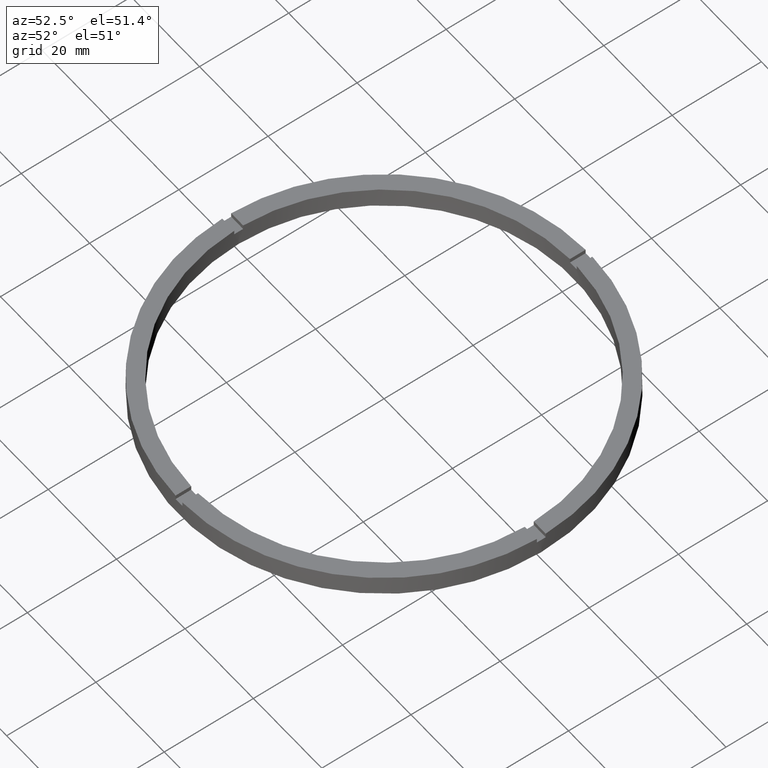
[diagram: clean part render]
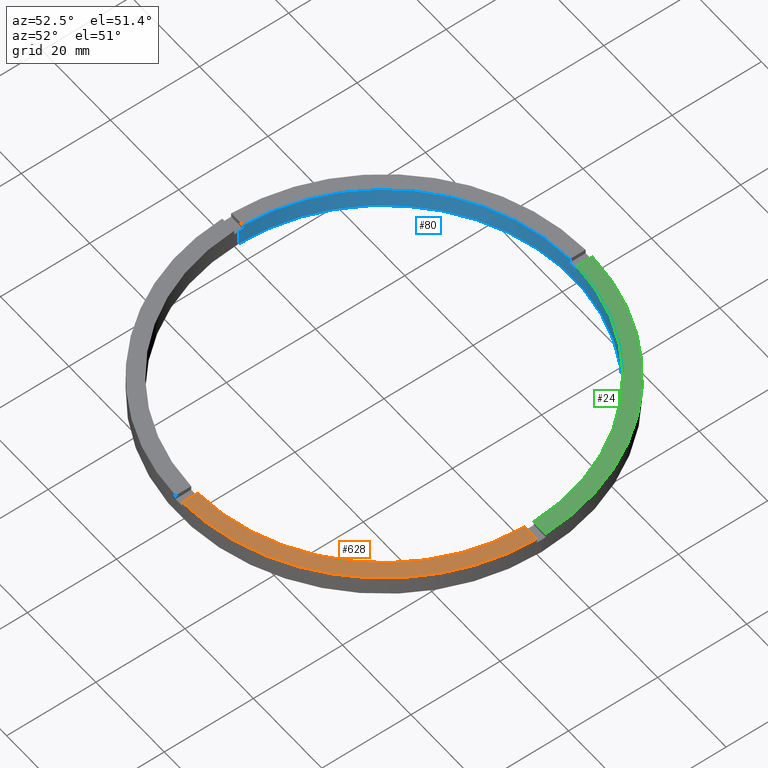
[diagram: same view with three faces highlighted in distinct colors, each labeled with its STEP entity id]
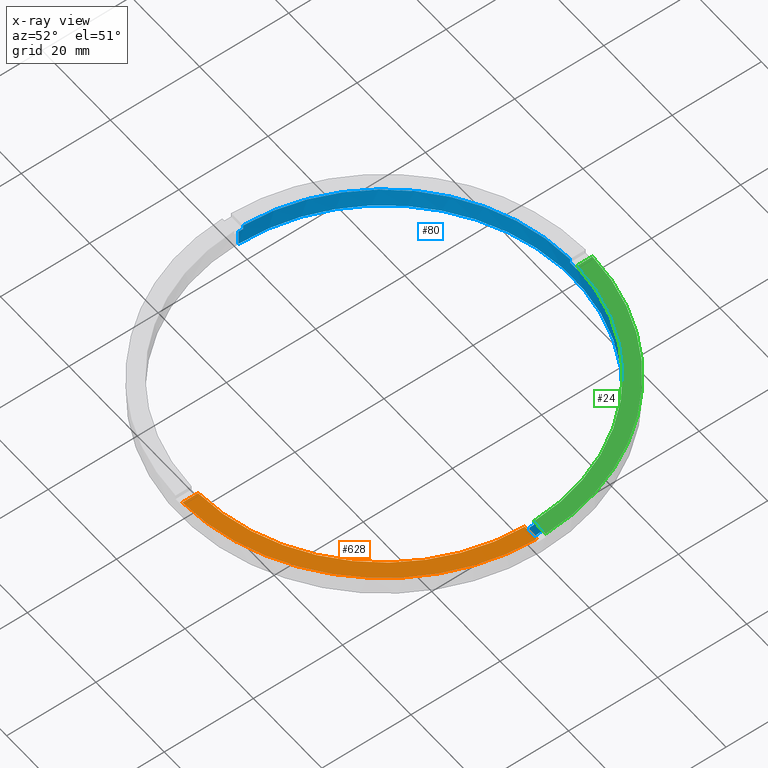
[diagram: x-ray of the same camera — body ghosted, the three highlighted faces saturated]
A machine part, auxiliary view with three faces highlighted in distinct colors.
The next image is the same camera in x-ray (body ghosted, the three faces saturated) — at least one of them is partly hidden behind the body in this view.
Their STEP definitions:

[orange] entity #628 — the highlighted planar face has unit normal (0, 0, 1).
#23 = VERTEX_POINT ( 'NONE', #656 ) ;
#30 = DIRECTION ( 'NONE',  ( 1.000000000000000000, 0.000000000000000000, 0.000000000000000000 ) ) ;
#72 = CARTESIAN_POINT ( 'NONE',  ( 45.98912915026767223, -1.000000000000155875, 4.500000000000000000 ) ) ;
#110 = CARTESIAN_POINT ( 'NONE',  ( 35.99999999999999289, -1.000000000000156541, 4.500000000000000000 ) ) ;
#121 = CARTESIAN_POINT ( 'NONE',  ( 42.48823366533375179, -1.000000000000156097, 4.500000000000000000 ) ) ;
#153 = DIRECTION ( 'NONE',  ( 1.000000000000000000, 6.505213034913025371E-17, 0.000000000000000000 ) ) ;
#159 = ORIENTED_EDGE ( 'NONE', *, *, #304, .F. ) ;
#160 = EDGE_CURVE ( 'NONE', #23, #474, #340, .T. ) ;
#161 = VERTEX_POINT ( 'NONE', #121 ) ;
#240 = VERTEX_POINT ( 'NONE', #72 ) ;
#245 = EDGE_CURVE ( 'NONE', #23, #240, #591, .T. ) ;
#260 = CARTESIAN_POINT ( 'NONE',  ( 0.000000000000000000, 0.000000000000000000, 4.500000000000000000 ) ) ;
#297 = PLANE ( 'NONE',  #622 ) ;
#304 = EDGE_CURVE ( 'NONE', #474, #161, #611, .T. ) ;
#314 = CARTESIAN_POINT ( 'NONE',  ( 0.000000000000000000, 0.000000000000000000, 4.500000000000000000 ) ) ;
#324 = CARTESIAN_POINT ( 'NONE',  ( 0.9999999999998409050, -36.00000000000017764, 4.500000000000000000 ) ) ;
#340 = LINE ( 'NONE', #324, #610 ) ;
#362 = LINE ( 'NONE', #110, #589 ) ;
#364 = CARTESIAN_POINT ( 'NONE',  ( 0.000000000000000000, 0.000000000000000000, 4.500000000000000000 ) ) ;
#392 = CARTESIAN_POINT ( 'NONE',  ( 0.9999999999998414602, -42.48823366533375889, 4.500000000000000000 ) ) ;
#407 = EDGE_CURVE ( 'NONE', #161, #240, #362, .T. ) ;
#418 = ORIENTED_EDGE ( 'NONE', *, *, #245, .T. ) ;
#469 = DIRECTION ( 'NONE',  ( 0.000000000000000000, 0.000000000000000000, 1.000000000000000000 ) ) ;
#471 = EDGE_LOOP ( 'NONE', ( #508, #159, #497, #418 ) ) ;
#474 = VERTEX_POINT ( 'NONE', #392 ) ;
#497 = ORIENTED_EDGE ( 'NONE', *, *, #160, .F. ) ;
#508 = ORIENTED_EDGE ( 'NONE', *, *, #407, .F. ) ;
#544 = FACE_OUTER_BOUND ( 'NONE', #471, .T. ) ;
#589 = VECTOR ( 'NONE', #153, 1000.000000000000000 ) ;
#591 = CIRCLE ( 'NONE', #645, 46.00000000000000000 ) ;
#602 = DIRECTION ( 'NONE',  ( 1.000000000000000000, 0.000000000000000000, -0.000000000000000000 ) ) ;
#609 = DIRECTION ( 'NONE',  ( 1.000000000000000000, 0.000000000000000000, 0.000000000000000000 ) ) ;
#610 = VECTOR ( 'NONE', #681, 1000.000000000000000 ) ;
#611 = CIRCLE ( 'NONE', #778, 42.50000000000000711 ) ;
#622 = AXIS2_PLACEMENT_3D ( 'NONE', #364, #469, #602 ) ;
#628 = ADVANCED_FACE ( 'NONE', ( #544 ), #297, .T. ) ;
#645 = AXIS2_PLACEMENT_3D ( 'NONE', #314, #716, #609 ) ;
#656 = CARTESIAN_POINT ( 'NONE',  ( 0.9999999999998421263, -45.98912915026767934, 4.500000000000000000 ) ) ;
#681 = DIRECTION ( 'NONE',  ( -1.301042606982605074E-16, 1.000000000000000000, -0.000000000000000000 ) ) ;
#714 = DIRECTION ( 'NONE',  ( 0.000000000000000000, 0.000000000000000000, 1.000000000000000000 ) ) ;
#716 = DIRECTION ( 'NONE',  ( 0.000000000000000000, 0.000000000000000000, 1.000000000000000000 ) ) ;
#778 = AXIS2_PLACEMENT_3D ( 'NONE', #260, #714, #30 ) ;

[blue] entity #80 — the highlighted cylindrical surface (partial cylindrical patch) has radius 42.5 mm, axis along (-0, -0, -1).
#2 = CARTESIAN_POINT ( 'NONE',  ( 0.000000000000000000, 0.000000000000000000, 3.499999999999999556 ) ) ;
#5 = VECTOR ( 'NONE', #535, 1000.000000000000000 ) ;
#8 = DIRECTION ( 'NONE',  ( 1.000000000000000000, 0.000000000000000000, 0.000000000000000000 ) ) ;
#19 = EDGE_CURVE ( 'NONE', #487, #727, #180, .T. ) ;
#34 = CARTESIAN_POINT ( 'NONE',  ( 42.48823366533375889, 0.9999999999998439026, 3.499999999999999556 ) ) ;
#43 = DIRECTION ( 'NONE',  ( -0.000000000000000000, -0.000000000000000000, -1.000000000000000000 ) ) ;
#55 = DIRECTION ( 'NONE',  ( 0.000000000000000000, 0.000000000000000000, 1.000000000000000000 ) ) ;
#65 = EDGE_CURVE ( 'NONE', #150, #162, #441, .T. ) ;
#68 = VECTOR ( 'NONE', #43, 1000.000000000000000 ) ;
#76 = AXIS2_PLACEMENT_3D ( 'NONE', #682, #55, #403 ) ;
#80 = ADVANCED_FACE ( 'NONE', ( #176 ), #690, .F. ) ;
#82 = CIRCLE ( 'NONE', #76, 42.50000000000000711 ) ;
#87 = EDGE_CURVE ( 'NONE', #150, #760, #684, .T. ) ;
#90 = VECTOR ( 'NONE', #644, 1000.000000000000000 ) ;
#101 = CARTESIAN_POINT ( 'NONE',  ( 0.9999999999999737987, 42.48823366533375889, 3.499999999999999556 ) ) ;
#108 = CARTESIAN_POINT ( 'NONE',  ( 0.9999999999999737987, 42.48823366533375889, 4.500000000000000000 ) ) ;
#111 = AXIS2_PLACEMENT_3D ( 'NONE', #406, #696, #549 ) ;
#113 = CARTESIAN_POINT ( 'NONE',  ( -42.48823366533375889, 0.9999999999999705791, 4.500000000000000000 ) ) ;
#117 = CARTESIAN_POINT ( 'NONE',  ( -42.48823366533375889, 0.9999999999999705791, 3.499999999999999556 ) ) ;
#124 = DIRECTION ( 'NONE',  ( -0.000000000000000000, -0.000000000000000000, -1.000000000000000000 ) ) ;
#125 = DIRECTION ( 'NONE',  ( 0.000000000000000000, 0.000000000000000000, 1.000000000000000000 ) ) ;
#128 = EDGE_CURVE ( 'NONE', #465, #162, #455, .T. ) ;
#131 = VERTEX_POINT ( 'NONE', #376 ) ;
#134 = ORIENTED_EDGE ( 'NONE', *, *, #65, .F. ) ;
#150 = VERTEX_POINT ( 'NONE', #101 ) ;
#155 = VERTEX_POINT ( 'NONE', #548 ) ;
#162 = VERTEX_POINT ( 'NONE', #108 ) ;
#165 = DIRECTION ( 'NONE',  ( 0.000000000000000000, -0.000000000000000000, 1.000000000000000000 ) ) ;
#167 = EDGE_CURVE ( 'NONE', #492, #131, #614, .T. ) ;
#168 = AXIS2_PLACEMENT_3D ( 'NONE', #259, #566, #366 ) ;
#176 = FACE_OUTER_BOUND ( 'NONE', #431, .T. ) ;
#180 = CIRCLE ( 'NONE', #506, 42.50000000000000711 ) ;
#185 = CARTESIAN_POINT ( 'NONE',  ( 0.000000000000000000, 0.000000000000000000, 4.500000000000000000 ) ) ;
#190 = ORIENTED_EDGE ( 'NONE', *, *, #395, .F. ) ;
#196 = CARTESIAN_POINT ( 'NONE',  ( 0.000000000000000000, 0.000000000000000000, 4.500000000000000000 ) ) ;
#197 = VERTEX_POINT ( 'NONE', #34 ) ;
#204 = ORIENTED_EDGE ( 'NONE', *, *, #167, .F. ) ;
#207 = VERTEX_POINT ( 'NONE', #117 ) ;
#211 = AXIS2_PLACEMENT_3D ( 'NONE', #2, #165, #515 ) ;
#220 = ORIENTED_EDGE ( 'NONE', *, *, #87, .T. ) ;
#230 = ORIENTED_EDGE ( 'NONE', *, *, #459, .T. ) ;
#248 = DIRECTION ( 'NONE',  ( 0.000000000000000000, 0.000000000000000000, 1.000000000000000000 ) ) ;
#259 = CARTESIAN_POINT ( 'NONE',  ( 0.000000000000000000, 0.000000000000000000, 4.500000000000000000 ) ) ;
#294 = CARTESIAN_POINT ( 'NONE',  ( -42.50000000000000711, 0.000000000000000000, 0.000000000000000000 ) ) ;
#300 = AXIS2_PLACEMENT_3D ( 'NONE', #530, #248, #491 ) ;
#326 = LINE ( 'NONE', #396, #90 ) ;
#333 = VECTOR ( 'NONE', #632, 1000.000000000000000 ) ;
#348 = CARTESIAN_POINT ( 'NONE',  ( 42.48823366533375889, 0.9999999999998439026, 4.500000000000000000 ) ) ;
#360 = CIRCLE ( 'NONE', #111, 42.50000000000000711 ) ;
#361 = CARTESIAN_POINT ( 'NONE',  ( 42.48823366533375889, 0.9999999999998439026, 4.500000000000000000 ) ) ;
#366 = DIRECTION ( 'NONE',  ( -1.000000000000000000, 0.000000000000000000, 0.000000000000000000 ) ) ;
#376 = CARTESIAN_POINT ( 'NONE',  ( 42.50000000000000711, 5.204748896376252474E-15, 0.000000000000000000 ) ) ;
#388 = CARTESIAN_POINT ( 'NONE',  ( -1.000000000000026201, 42.48823366533375179, 3.499999999999999556 ) ) ;
#391 = AXIS2_PLACEMENT_3D ( 'NONE', #196, #738, #629 ) ;
#395 = EDGE_CURVE ( 'NONE', #207, #727, #326, .T. ) ;
#396 = CARTESIAN_POINT ( 'NONE',  ( -42.48823366533375889, 0.9999999999999705791, 4.500000000000000000 ) ) ;
#403 = DIRECTION ( 'NONE',  ( 1.000000000000000000, 0.000000000000000000, 0.000000000000000000 ) ) ;
#406 = CARTESIAN_POINT ( 'NONE',  ( 0.000000000000000000, 0.000000000000000000, 0.000000000000000000 ) ) ;
#431 = EDGE_LOOP ( 'NONE', ( #204, #711, #463, #707, #134, #220, #556, #514, #190, #662, #230, #670 ) ) ;
#440 = CARTESIAN_POINT ( 'NONE',  ( 42.50000000000000711, 5.204748896376252474E-15, 4.500000000000000000 ) ) ;
#441 = LINE ( 'NONE', #663, #689 ) ;
#442 = EDGE_CURVE ( 'NONE', #131, #504, #360, .T. ) ;
#455 = CIRCLE ( 'NONE', #391, 42.50000000000000711 ) ;
#459 = EDGE_CURVE ( 'NONE', #155, #504, #598, .T. ) ;
#460 = CARTESIAN_POINT ( 'NONE',  ( -42.50000000000000711, 0.000000000000000000, 4.500000000000000000 ) ) ;
#463 = ORIENTED_EDGE ( 'NONE', *, *, #493, .F. ) ;
#465 = VERTEX_POINT ( 'NONE', #348 ) ;
#487 = VERTEX_POINT ( 'NONE', #603 ) ;
#491 = DIRECTION ( 'NONE',  ( 1.000000000000000000, 0.000000000000000000, 0.000000000000000000 ) ) ;
#492 = VERTEX_POINT ( 'NONE', #587 ) ;
#493 = EDGE_CURVE ( 'NONE', #465, #197, #600, .T. ) ;
#504 = VERTEX_POINT ( 'NONE', #294 ) ;
#506 = AXIS2_PLACEMENT_3D ( 'NONE', #185, #125, #8 ) ;
#514 = ORIENTED_EDGE ( 'NONE', *, *, #19, .T. ) ;
#515 = DIRECTION ( 'NONE',  ( 1.000000000000000000, 0.000000000000000000, 0.000000000000000000 ) ) ;
#530 = CARTESIAN_POINT ( 'NONE',  ( 0.000000000000000000, 0.000000000000000000, 3.499999999999999556 ) ) ;
#531 = CIRCLE ( 'NONE', #300, 42.50000000000000711 ) ;
#535 = DIRECTION ( 'NONE',  ( -0.000000000000000000, -0.000000000000000000, -1.000000000000000000 ) ) ;
#542 = EDGE_CURVE ( 'NONE', #207, #155, #82, .T. ) ;
#548 = CARTESIAN_POINT ( 'NONE',  ( -42.50000000000000711, 0.000000000000000000, 3.499999999999999556 ) ) ;
#549 = DIRECTION ( 'NONE',  ( 1.000000000000000000, 0.000000000000000000, 0.000000000000000000 ) ) ;
#556 = ORIENTED_EDGE ( 'NONE', *, *, #700, .F. ) ;
#566 = DIRECTION ( 'NONE',  ( -0.000000000000000000, -0.000000000000000000, -1.000000000000000000 ) ) ;
#578 = CARTESIAN_POINT ( 'NONE',  ( -1.000000000000026201, 42.48823366533375179, 4.500000000000000000 ) ) ;
#587 = CARTESIAN_POINT ( 'NONE',  ( 42.50000000000000711, 5.204748896376252474E-15, 3.499999999999999556 ) ) ;
#588 = VECTOR ( 'NONE', #124, 1000.000000000000000 ) ;
#598 = LINE ( 'NONE', #460, #68 ) ;
#600 = LINE ( 'NONE', #361, #588 ) ;
#603 = CARTESIAN_POINT ( 'NONE',  ( -1.000000000000026201, 42.48823366533375179, 4.500000000000000000 ) ) ;
#614 = LINE ( 'NONE', #440, #333 ) ;
#629 = DIRECTION ( 'NONE',  ( 1.000000000000000000, 0.000000000000000000, 0.000000000000000000 ) ) ;
#632 = DIRECTION ( 'NONE',  ( -0.000000000000000000, -0.000000000000000000, -1.000000000000000000 ) ) ;
#644 = DIRECTION ( 'NONE',  ( 0.000000000000000000, 0.000000000000000000, 1.000000000000000000 ) ) ;
#650 = EDGE_CURVE ( 'NONE', #492, #197, #531, .T. ) ;
#662 = ORIENTED_EDGE ( 'NONE', *, *, #542, .T. ) ;
#663 = CARTESIAN_POINT ( 'NONE',  ( 0.9999999999999737987, 42.48823366533375889, 4.500000000000000000 ) ) ;
#670 = ORIENTED_EDGE ( 'NONE', *, *, #442, .F. ) ;
#682 = CARTESIAN_POINT ( 'NONE',  ( 0.000000000000000000, 0.000000000000000000, 3.499999999999999556 ) ) ;
#684 = CIRCLE ( 'NONE', #211, 42.50000000000000711 ) ;
#689 = VECTOR ( 'NONE', #720, 1000.000000000000000 ) ;
#690 = CYLINDRICAL_SURFACE ( 'NONE', #168, 42.50000000000000711 ) ;
#696 = DIRECTION ( 'NONE',  ( 0.000000000000000000, 0.000000000000000000, 1.000000000000000000 ) ) ;
#700 = EDGE_CURVE ( 'NONE', #487, #760, #758, .T. ) ;
#707 = ORIENTED_EDGE ( 'NONE', *, *, #128, .T. ) ;
#711 = ORIENTED_EDGE ( 'NONE', *, *, #650, .T. ) ;
#720 = DIRECTION ( 'NONE',  ( 0.000000000000000000, 0.000000000000000000, 1.000000000000000000 ) ) ;
#727 = VERTEX_POINT ( 'NONE', #113 ) ;
#738 = DIRECTION ( 'NONE',  ( 0.000000000000000000, 0.000000000000000000, 1.000000000000000000 ) ) ;
#758 = LINE ( 'NONE', #578, #5 ) ;
#760 = VERTEX_POINT ( 'NONE', #388 ) ;

[green] entity #24 — the highlighted planar face has unit normal (0, 0, 1).
#11 = VERTEX_POINT ( 'NONE', #138 ) ;
#12 = DIRECTION ( 'NONE',  ( 0.000000000000000000, 0.000000000000000000, 1.000000000000000000 ) ) ;
#14 = EDGE_LOOP ( 'NONE', ( #731, #448, #456, #385 ) ) ;
#16 = AXIS2_PLACEMENT_3D ( 'NONE', #728, #144, #89 ) ;
#18 = CARTESIAN_POINT ( 'NONE',  ( 0.9999999999999737987, 36.00000000000000000, 4.500000000000000000 ) ) ;
#24 = ADVANCED_FACE ( 'NONE', ( #680 ), #726, .T. ) ;
#73 = EDGE_CURVE ( 'NONE', #162, #11, #445, .T. ) ;
#83 = DIRECTION ( 'NONE',  ( 0.000000000000000000, 1.000000000000000000, 0.000000000000000000 ) ) ;
#89 = DIRECTION ( 'NONE',  ( 1.000000000000000000, 0.000000000000000000, 0.000000000000000000 ) ) ;
#95 = LINE ( 'NONE', #105, #349 ) ;
#105 = CARTESIAN_POINT ( 'NONE',  ( 35.99999999999999289, 0.9999999999998434586, 4.500000000000000000 ) ) ;
#108 = CARTESIAN_POINT ( 'NONE',  ( 0.9999999999999737987, 42.48823366533375889, 4.500000000000000000 ) ) ;
#128 = EDGE_CURVE ( 'NONE', #465, #162, #455, .T. ) ;
#138 = CARTESIAN_POINT ( 'NONE',  ( 0.9999999999999737987, 45.98912915026767223, 4.500000000000000000 ) ) ;
#144 = DIRECTION ( 'NONE',  ( 0.000000000000000000, 0.000000000000000000, 1.000000000000000000 ) ) ;
#162 = VERTEX_POINT ( 'NONE', #108 ) ;
#172 = VECTOR ( 'NONE', #83, 1000.000000000000000 ) ;
#196 = CARTESIAN_POINT ( 'NONE',  ( 0.000000000000000000, 0.000000000000000000, 4.500000000000000000 ) ) ;
#280 = EDGE_CURVE ( 'NONE', #488, #11, #616, .T. ) ;
#348 = CARTESIAN_POINT ( 'NONE',  ( 42.48823366533375889, 0.9999999999998439026, 4.500000000000000000 ) ) ;
#349 = VECTOR ( 'NONE', #658, 1000.000000000000000 ) ;
#368 = EDGE_CURVE ( 'NONE', #488, #465, #95, .T. ) ;
#385 = ORIENTED_EDGE ( 'NONE', *, *, #280, .T. ) ;
#391 = AXIS2_PLACEMENT_3D ( 'NONE', #196, #738, #629 ) ;
#445 = LINE ( 'NONE', #18, #172 ) ;
#448 = ORIENTED_EDGE ( 'NONE', *, *, #128, .F. ) ;
#455 = CIRCLE ( 'NONE', #391, 42.50000000000000711 ) ;
#456 = ORIENTED_EDGE ( 'NONE', *, *, #368, .F. ) ;
#465 = VERTEX_POINT ( 'NONE', #348 ) ;
#488 = VERTEX_POINT ( 'NONE', #781 ) ;
#501 = DIRECTION ( 'NONE',  ( 1.000000000000000000, 0.000000000000000000, -0.000000000000000000 ) ) ;
#615 = AXIS2_PLACEMENT_3D ( 'NONE', #712, #12, #501 ) ;
#616 = CIRCLE ( 'NONE', #16, 46.00000000000000000 ) ;
#629 = DIRECTION ( 'NONE',  ( 1.000000000000000000, 0.000000000000000000, 0.000000000000000000 ) ) ;
#658 = DIRECTION ( 'NONE',  ( -1.000000000000000000, -6.505213034913025371E-17, -0.000000000000000000 ) ) ;
#680 = FACE_OUTER_BOUND ( 'NONE', #14, .T. ) ;
#712 = CARTESIAN_POINT ( 'NONE',  ( 0.000000000000000000, 0.000000000000000000, 4.500000000000000000 ) ) ;
#726 = PLANE ( 'NONE',  #615 ) ;
#728 = CARTESIAN_POINT ( 'NONE',  ( 0.000000000000000000, 0.000000000000000000, 4.500000000000000000 ) ) ;
#731 = ORIENTED_EDGE ( 'NONE', *, *, #73, .F. ) ;
#738 = DIRECTION ( 'NONE',  ( 0.000000000000000000, 0.000000000000000000, 1.000000000000000000 ) ) ;
#781 = CARTESIAN_POINT ( 'NONE',  ( 45.98912915026767934, 0.9999999999998441247, 4.500000000000000000 ) ) ;